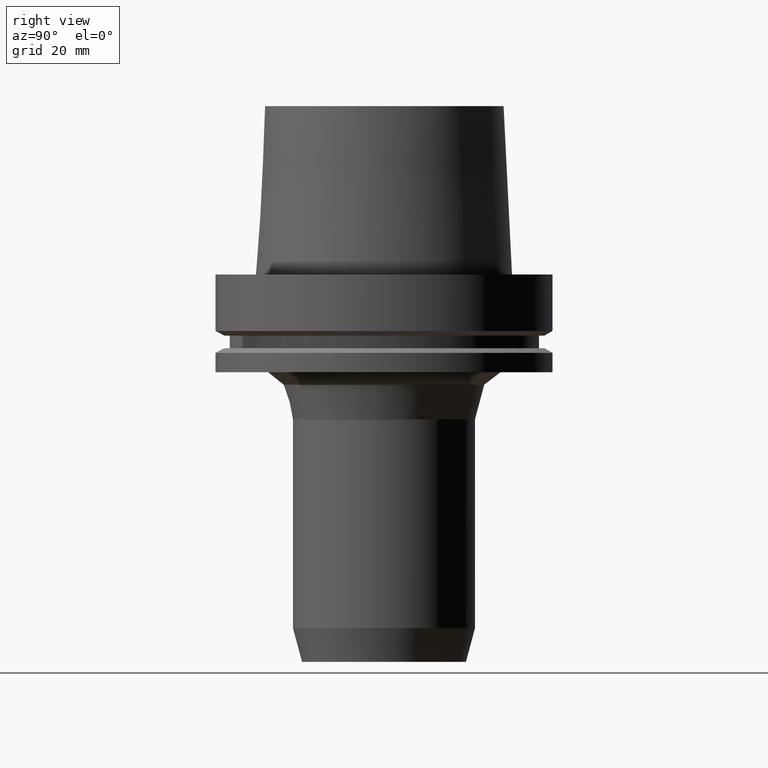
[diagram: clean part render]
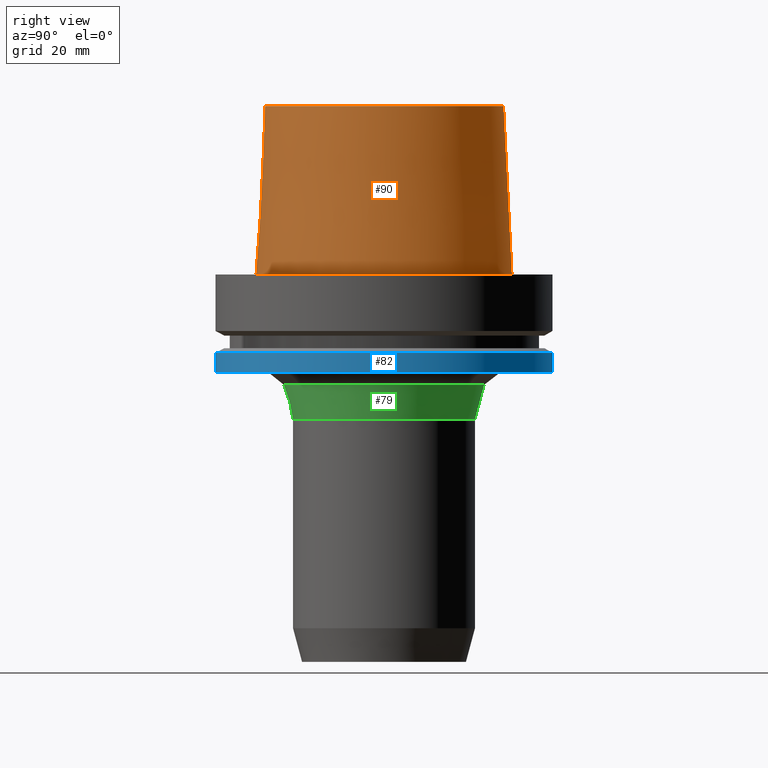
[diagram: same view with three faces highlighted in distinct colors, each labeled with its STEP entity id]
A machine part, right view with three faces highlighted in distinct colors.
Their STEP definitions:

[orange] entity #90 — the highlighted conical surface has half-angle 2.862 deg.
#90=ADVANCED_FACE('',(#135,#136),#137,.T.);
#135=FACE_BOUND('',#181,.T.);
#136=FACE_BOUND('',#182,.T.);
#137=CONICAL_SURFACE('',#183,36.7500000007484,0.0499583956894865);
#181=EDGE_LOOP('',(#257));
#182=EDGE_LOOP('',(#258));
#183=AXIS2_PLACEMENT_3D('',#259,#260,#261);
#257=ORIENTED_EDGE('',*,*,#262,.F.);
#258=ORIENTED_EDGE('',*,*,#276,.T.);
#259=CARTESIAN_POINT('',(-1.53080849893419E-015,-3.06161699786838E-015,25.0));
#260=DIRECTION('',(6.12323399573677E-017,1.22464679914735E-016,-1.0));
#261=DIRECTION('',(-1.23259516440783E-032,1.0,1.22464679914735E-016));
#262=EDGE_CURVE('',#277,#277,#278,.T.);
#276=EDGE_CURVE('',#305,#305,#306,.T.);
#277=VERTEX_POINT('',#307);
#278=CIRCLE('',#308,35.5000000015618);
#305=VERTEX_POINT('',#335);
#306=CIRCLE('',#336,37.9999999999349);
#307=CARTESIAN_POINT('',(-3.06161699786838E-015,35.5000000015618,50.0));
#308=AXIS2_PLACEMENT_3D('',#337,#338,#339);
#335=CARTESIAN_POINT('',(-4.68386162474174E-031,37.9999999999349,4.65365783675197E-015));
#336=AXIS2_PLACEMENT_3D('',#379,#380,#381);
#337=CARTESIAN_POINT('',(-3.06161699786838E-015,-6.12323399573676E-015,50.0));
#338=DIRECTION('',(-6.12323399573677E-017,-1.22464679914735E-016,1.0));
#339=DIRECTION('',(-1.23259516440783E-032,1.0,1.22464679914735E-016));
#379=CARTESIAN_POINT('',(0.0,0.0,0.0));
#380=DIRECTION('',(-6.12323399573677E-017,-1.22464679914735E-016,1.0));
#381=DIRECTION('',(-1.23259516440783E-032,1.0,1.22464679914735E-016));

[blue] entity #82 — the highlighted cylindrical surface (bore or boss wall) has radius 50 mm, axis along (0, 0, -1).
#82=ADVANCED_FACE('',(#111,#112),#113,.T.);
#111=FACE_BOUND('',#157,.T.);
#112=FACE_BOUND('',#158,.T.);
#113=CYLINDRICAL_SURFACE('',#159,50.0);
#157=EDGE_LOOP('',(#217));
#158=EDGE_LOOP('',(#218));
#159=AXIS2_PLACEMENT_3D('',#219,#220,#221);
#217=ORIENTED_EDGE('',*,*,#269,.F.);
#218=ORIENTED_EDGE('',*,*,#268,.T.);
#219=CARTESIAN_POINT('',(1.59962125745764E-015,3.19924251491527E-015,-26.12379763));
#220=DIRECTION('',(6.12323399573677E-017,1.22464679914735E-016,-1.0));
#221=DIRECTION('',(-1.23259516440783E-032,1.0,1.22464679914735E-016));
#268=EDGE_CURVE('',#289,#289,#290,.T.);
#269=EDGE_CURVE('',#291,#291,#292,.T.);
#289=VERTEX_POINT('',#319);
#290=CIRCLE('',#320,50.0);
#291=VERTEX_POINT('',#321);
#292=CIRCLE('',#322,50.0);
#319=CARTESIAN_POINT('',(1.77573785876366E-015,50.0,-29.0));
#320=AXIS2_PLACEMENT_3D('',#355,#356,#357);
#321=CARTESIAN_POINT('',(1.42350465615161E-015,50.0,-23.24759526));
#322=AXIS2_PLACEMENT_3D('',#358,#359,#360);
#355=CARTESIAN_POINT('',(1.77573785876366E-015,3.55147571752732E-015,-29.0));
#356=DIRECTION('',(-6.12323399573677E-017,-1.22464679914735E-016,1.0));
#357=DIRECTION('',(-1.23259516440783E-032,1.0,1.22464679914735E-016));
#358=CARTESIAN_POINT('',(1.42350465615161E-015,2.84700931230322E-015,-23.24759526));
#359=DIRECTION('',(-6.12323399573677E-017,-1.22464679914735E-016,1.0));
#360=DIRECTION('',(-1.23259516440783E-032,1.0,1.22464679914735E-016));

[green] entity #79 — the highlighted conical surface has half-angle 15 deg.
#79=ADVANCED_FACE('',(#102,#103),#104,.T.);
#102=FACE_BOUND('',#148,.T.);
#103=FACE_BOUND('',#149,.T.);
#104=CONICAL_SURFACE('',#150,28.3791472495432,0.261799387862395);
#148=EDGE_LOOP('',(#202));
#149=EDGE_LOOP('',(#203));
#150=AXIS2_PLACEMENT_3D('',#204,#205,#206);
#202=ORIENTED_EDGE('',*,*,#266,.F.);
#203=ORIENTED_EDGE('',*,*,#265,.T.);
#204=CARTESIAN_POINT('',(2.31782484843169E-015,4.63564969686338E-015,-37.8529523785217));
#205=DIRECTION('',(-6.12323399573677E-017,-1.22464679914735E-016,1.0));
#206=DIRECTION('',(-1.23259516440783E-032,1.0,1.22464679914735E-016));
#265=EDGE_CURVE('',#283,#283,#284,.T.);
#266=EDGE_CURVE('',#285,#285,#286,.T.);
#283=VERTEX_POINT('',#313);
#284=CIRCLE('',#314,27.0);
#285=VERTEX_POINT('',#315);
#286=CIRCLE('',#316,29.7582944990864);
#313=CARTESIAN_POINT('',(2.63299061716465E-015,27.0,-42.9999999836336));
#314=AXIS2_PLACEMENT_3D('',#346,#347,#348);
#315=CARTESIAN_POINT('',(2.00265907969872E-015,29.7582944990864,-32.7059047734098));
#316=AXIS2_PLACEMENT_3D('',#349,#350,#351);
#346=CARTESIAN_POINT('',(2.63299061716465E-015,5.26598123432931E-015,-42.9999999836336));
#347=DIRECTION('',(-6.12323399573677E-017,-1.22464679914735E-016,1.0));
#348=DIRECTION('',(-1.23259516440783E-032,1.0,1.22464679914735E-016));
#349=CARTESIAN_POINT('',(2.00265907969872E-015,4.00531815939744E-015,-32.7059047734098));
#350=DIRECTION('',(-6.12323399573677E-017,-1.22464679914735E-016,1.0));
#351=DIRECTION('',(-1.23259516440783E-032,1.0,1.22464679914735E-016));